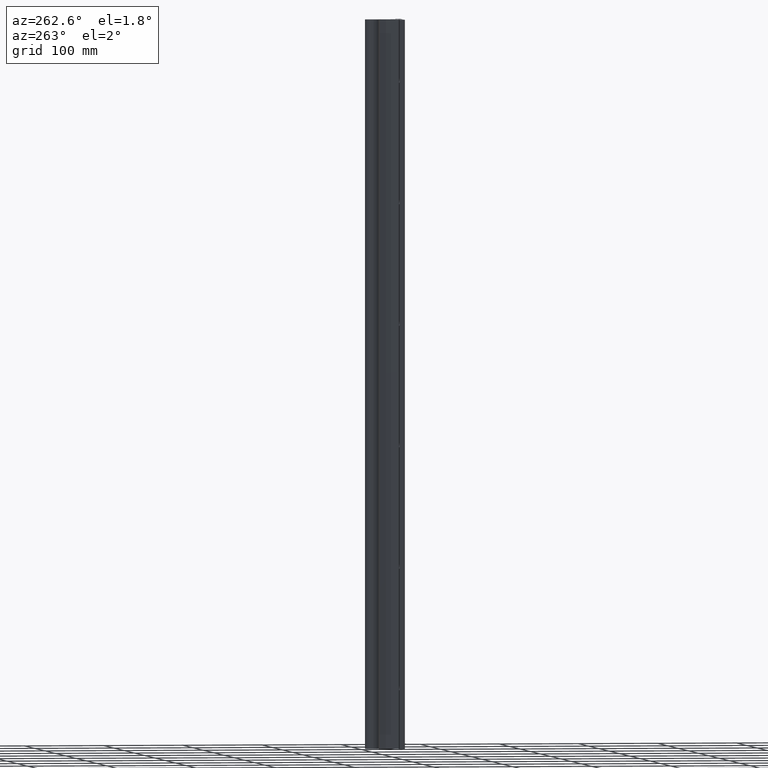
[diagram: clean part render]
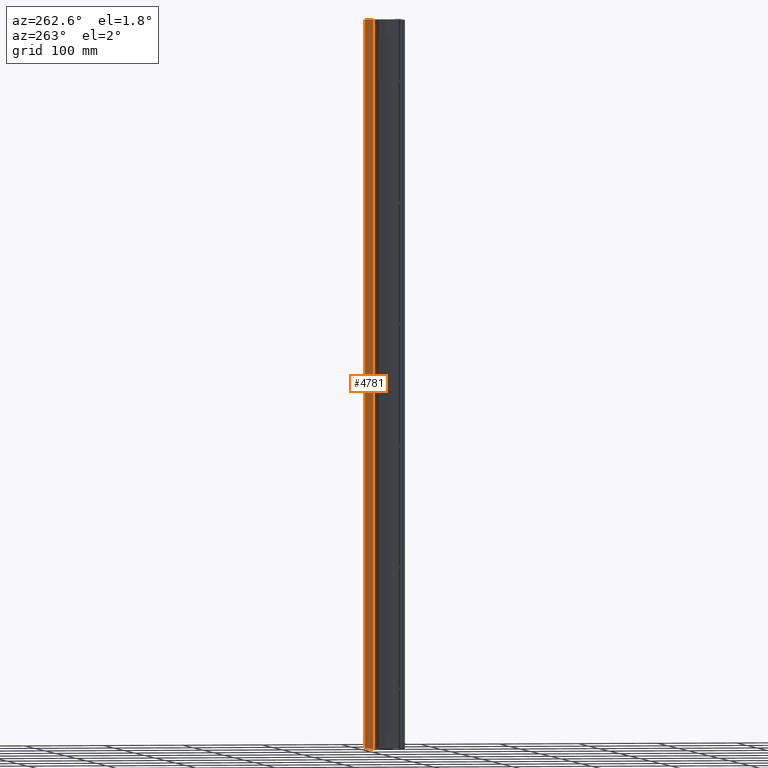
[diagram: same view with one face highlighted and labeled with its STEP entity id]
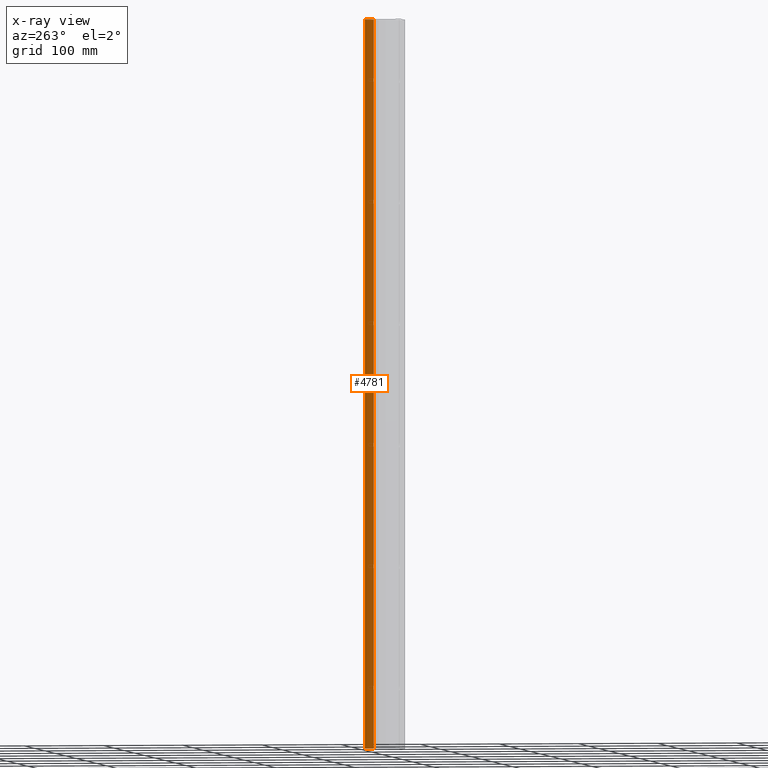
[diagram: x-ray of the same camera — body ghosted, the highlighted face saturated]
A machine part, auxiliary view. The second image highlights one B-rep face of the part: STEP entity #4781.
The next image is the same camera in x-ray: the body ghosted, the highlighted face saturated — about 0% of this face is hidden behind the body in this view.
In plain terms, the highlighted cylindrical surface (edge-blend (fillet) strip) has radius 9.525 mm, axis along (0, 0, 1).
Its self-contained STEP definition (entity closure, byte-faithful):
#110 = ORIENTED_EDGE ( 'NONE', *, *, #13236, .F. ) ;
#1620 = CARTESIAN_POINT ( 'NONE',  ( -0.3749999999999999445, 1.500000000000000222, 0.000000000000000000 ) ) ;
#2001 = CARTESIAN_POINT ( 'NONE',  ( -0.3749999999999999445, 1.500000000000000222, -36.00000000000000000 ) ) ;
#2621 = DIRECTION ( 'NONE',  ( 1.000000000000000000, 0.000000000000000000, 0.000000000000000000 ) ) ;
#3248 = DIRECTION ( 'NONE',  ( 1.000000000000000000, 0.000000000000000000, 0.000000000000000000 ) ) ;
#3402 = CARTESIAN_POINT ( 'NONE',  ( 0.3749999999999999445, 1.500000000000000222, 0.000000000000000000 ) ) ;
#3419 = CARTESIAN_POINT ( 'NONE',  ( -0.3749999999999999445, 1.500000000000000222, -36.00000000000000000 ) ) ;
#3886 = VERTEX_POINT ( 'NONE', #3419 ) ;
#4087 = VECTOR ( 'NONE', #6576, 39.37007874015748143 ) ;
#4327 = VECTOR ( 'NONE', #7112, 39.37007874015748143 ) ;
#4781 = ADVANCED_FACE ( 'NONE', ( #10366 ), #7188, .T. ) ;
#4838 = LINE ( 'NONE', #9743, #4087 ) ;
#5075 = DIRECTION ( 'NONE',  ( 0.000000000000000000, 0.000000000000000000, 1.000000000000000000 ) ) ;
#5112 = VERTEX_POINT ( 'NONE', #3402 ) ;
#5478 = EDGE_LOOP ( 'NONE', ( #12194, #8901, #110, #6919 ) ) ;
#5591 = CARTESIAN_POINT ( 'NONE',  ( 0.3749999999999999445, 1.500000000000000222, -36.00000000000000000 ) ) ;
#6114 = AXIS2_PLACEMENT_3D ( 'NONE', #11332, #5075, #9230 ) ;
#6370 = CARTESIAN_POINT ( 'NONE',  ( 0.000000000000000000, 1.500000000000000222, 0.000000000000000000 ) ) ;
#6455 = CIRCLE ( 'NONE', #8230, 0.3749999999999999445 ) ;
#6576 = DIRECTION ( 'NONE',  ( 0.000000000000000000, 0.000000000000000000, 1.000000000000000000 ) ) ;
#6919 = ORIENTED_EDGE ( 'NONE', *, *, #8204, .F. ) ;
#7112 = DIRECTION ( 'NONE',  ( 0.000000000000000000, 0.000000000000000000, 1.000000000000000000 ) ) ;
#7188 = CYLINDRICAL_SURFACE ( 'NONE', #6114, 0.3749999999999999445 ) ;
#7465 = EDGE_CURVE ( 'NONE', #9999, #3886, #6455, .T. ) ;
#7504 = CIRCLE ( 'NONE', #11037, 0.3749999999999999445 ) ;
#8204 = EDGE_CURVE ( 'NONE', #9999, #5112, #4838, .T. ) ;
#8230 = AXIS2_PLACEMENT_3D ( 'NONE', #9727, #9870, #2621 ) ;
#8901 = ORIENTED_EDGE ( 'NONE', *, *, #9815, .T. ) ;
#9230 = DIRECTION ( 'NONE',  ( 1.000000000000000000, 0.000000000000000000, 0.000000000000000000 ) ) ;
#9242 = VERTEX_POINT ( 'NONE', #1620 ) ;
#9328 = DIRECTION ( 'NONE',  ( 0.000000000000000000, 0.000000000000000000, 1.000000000000000000 ) ) ;
#9727 = CARTESIAN_POINT ( 'NONE',  ( 0.000000000000000000, 1.500000000000000222, -36.00000000000000000 ) ) ;
#9743 = CARTESIAN_POINT ( 'NONE',  ( 0.3749999999999999445, 1.500000000000000222, -36.00000000000000000 ) ) ;
#9815 = EDGE_CURVE ( 'NONE', #3886, #9242, #13558, .T. ) ;
#9870 = DIRECTION ( 'NONE',  ( 0.000000000000000000, 0.000000000000000000, 1.000000000000000000 ) ) ;
#9999 = VERTEX_POINT ( 'NONE', #5591 ) ;
#10366 = FACE_OUTER_BOUND ( 'NONE', #5478, .T. ) ;
#11037 = AXIS2_PLACEMENT_3D ( 'NONE', #6370, #9328, #3248 ) ;
#11332 = CARTESIAN_POINT ( 'NONE',  ( 0.000000000000000000, 1.500000000000000222, -36.00000000000000000 ) ) ;
#12194 = ORIENTED_EDGE ( 'NONE', *, *, #7465, .T. ) ;
#13236 = EDGE_CURVE ( 'NONE', #5112, #9242, #7504, .T. ) ;
#13558 = LINE ( 'NONE', #2001, #4327 ) ;